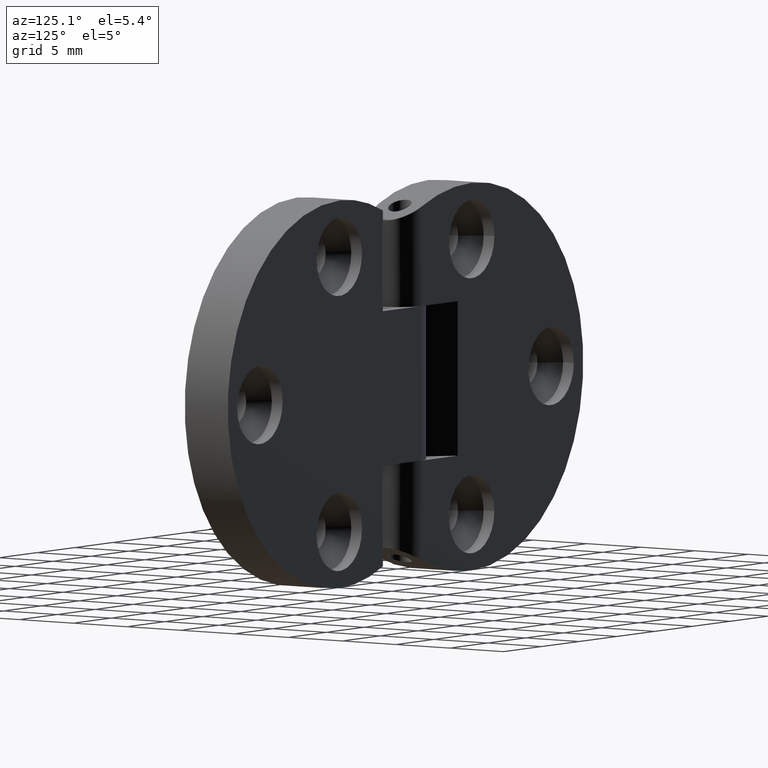
[diagram: clean part render]
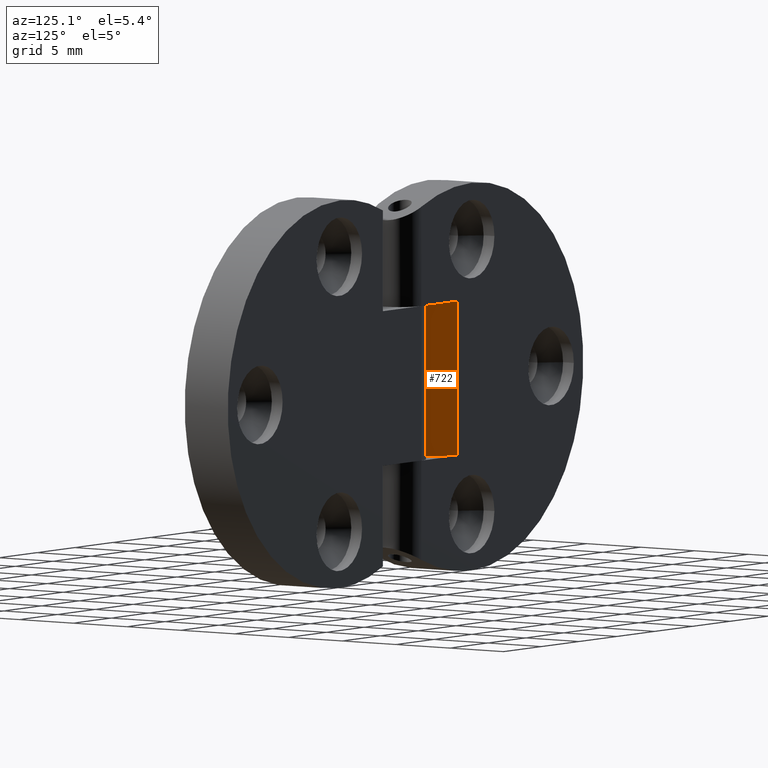
[diagram: same view with one face highlighted and labeled with its STEP entity id]
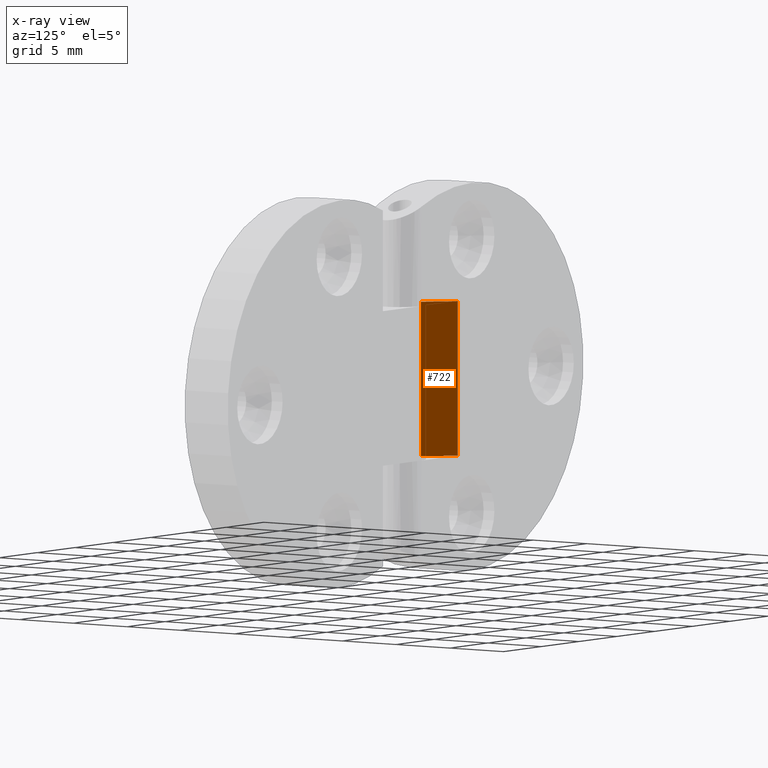
[diagram: x-ray of the same camera — body ghosted, the highlighted face saturated]
A machine part, auxiliary view. The second image highlights one B-rep face of the part: STEP entity #722.
The next image is the same camera in x-ray: the body ghosted, the highlighted face saturated — about 0% of this face is hidden behind the body in this view.
In plain terms, the highlighted planar face has unit normal (0.7071, 0.7071, -0).
Its self-contained STEP definition (entity closure, byte-faithful):
#161=FACE_OUTER_BOUND('',#208,.T.);
#208=EDGE_LOOP('',(#528,#529,#530,#531));
#295=LINE('',#1119,#332);
#296=LINE('',#1121,#333);
#297=LINE('',#1123,#334);
#298=LINE('',#1124,#335);
#332=VECTOR('',#878,2.82842712474619);
#333=VECTOR('',#879,11.8);
#334=VECTOR('',#880,2.82842712474619);
#335=VECTOR('',#881,11.8);
#369=VERTEX_POINT('',#1117);
#370=VERTEX_POINT('',#1118);
#371=VERTEX_POINT('',#1120);
#372=VERTEX_POINT('',#1122);
#439=EDGE_CURVE('',#369,#370,#295,.F.);
#440=EDGE_CURVE('',#370,#371,#296,.T.);
#441=EDGE_CURVE('',#371,#372,#297,.F.);
#442=EDGE_CURVE('',#372,#369,#298,.T.);
#528=ORIENTED_EDGE('',*,*,#439,.T.);
#529=ORIENTED_EDGE('',*,*,#440,.T.);
#530=ORIENTED_EDGE('',*,*,#441,.T.);
#531=ORIENTED_EDGE('',*,*,#442,.T.);
#706=PLANE('',#773);
#722=ADVANCED_FACE('',(#161),#706,.T.);
#773=AXIS2_PLACEMENT_3D('',#1116,#876,#877);
#876=DIRECTION('center_axis',(0.707106781186548,0.707106781186547,-5.30436641447221E-17));
#877=DIRECTION('ref_axis',(0.,0.,-1.));
#878=DIRECTION('',(-0.707106781186547,0.707106781186548,5.30436641447221E-17));
#879=DIRECTION('',(-7.50150692314295E-17,0.,-1.));
#880=DIRECTION('',(0.707106781186547,-0.707106781186548,-5.30436641447221E-17));
#881=DIRECTION('',(7.50150692314295E-17,0.,1.));
#1116=CARTESIAN_POINT('Origin',(-3.79999999999999,1.,2.95));
#1117=CARTESIAN_POINT('',(-4.79999999999999,2.,5.9));
#1118=CARTESIAN_POINT('',(-2.79999999999999,0.,5.9));
#1119=CARTESIAN_POINT('',(-2.59999999999999,-0.199999999999997,5.9));
#1120=CARTESIAN_POINT('',(-2.79999999999999,0.,-5.9));
#1121=CARTESIAN_POINT('',(-2.79999999999999,0.,2.95));
#1122=CARTESIAN_POINT('',(-4.79999999999999,2.,-5.9));
#1123=CARTESIAN_POINT('',(-3.79999999999999,1.,-5.9));
#1124=CARTESIAN_POINT('',(-4.79999999999999,2.,2.95));